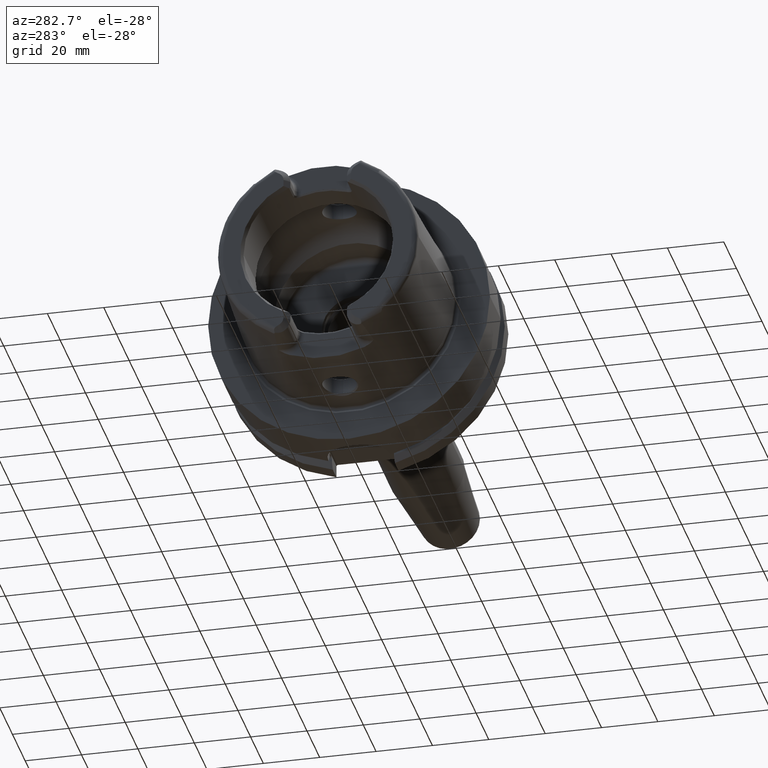
[diagram: clean part render]
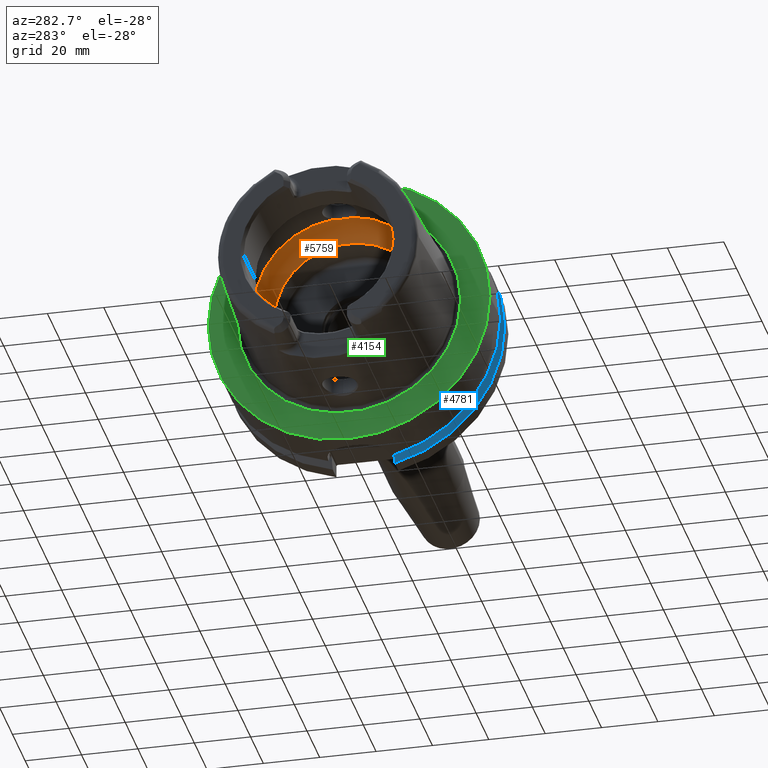
[diagram: same view with three faces highlighted in distinct colors, each labeled with its STEP entity id]
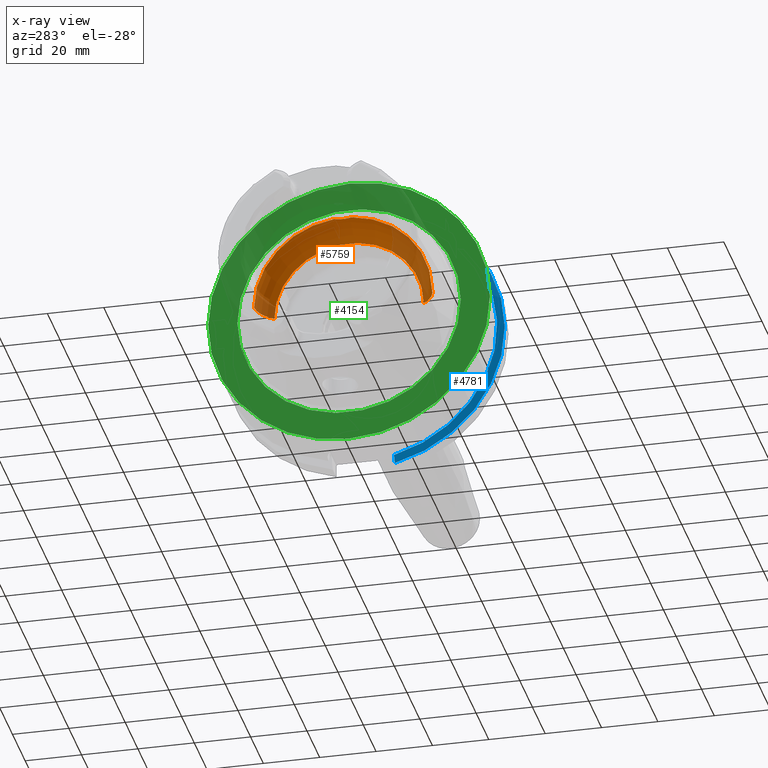
[diagram: x-ray of the same camera — body ghosted, the three highlighted faces saturated]
A machine part, auxiliary view with three faces highlighted in distinct colors.
The next image is the same camera in x-ray (body ghosted, the three faces saturated) — at least one of them is partly hidden behind the body in this view.
Their STEP definitions:

[orange] entity #5759 — the highlighted toroidal blend (fillet) surface has major radius 19.5 mm and minor (blend) radius 12 mm.
#2082=CARTESIAN_POINT('',(-9.E0,0.E0,3.147008518506E1));
#2083=CARTESIAN_POINT('',(-9.E0,2.141252053900E-1,3.147008518506E1));
#2084=CARTESIAN_POINT('',(-9.022897579641E0,6.436731047292E-1,
3.146736073712E1));
#2085=CARTESIAN_POINT('',(-9.127427069178E0,1.286248325661E0,3.145454181001E1));
#2086=CARTESIAN_POINT('',(-9.301031145484E0,1.913730198969E0,3.143197920586E1));
#2087=CARTESIAN_POINT('',(-9.539946842554E0,2.515068696018E0,3.139832080387E1));
#2088=CARTESIAN_POINT('',(-9.738529982809E0,2.891645116602E0,3.136752560017E1));
#2089=CARTESIAN_POINT('',(-9.846794344809E0,3.073185883624E0,3.134972932139E1));
#2091=CARTESIAN_POINT('',(-9.846794344809E0,-3.073185883624E0,
3.134972932139E1));
#2092=CARTESIAN_POINT('',(-9.738534471789E0,-2.891652643851E0,
3.136752486228E1));
#2093=CARTESIAN_POINT('',(-9.539946477828E0,-2.515078628379E0,
3.139832107651E1));
#2094=CARTESIAN_POINT('',(-9.300974895981E0,-1.913573808680E0,
3.143198691417E1));
#2095=CARTESIAN_POINT('',(-9.127396838585E0,-1.286102505522E0,
3.145454553504E1));
#2096=CARTESIAN_POINT('',(-9.022886850943E0,-6.435548392987E-1,
3.146736203025E1));
#2097=CARTESIAN_POINT('',(-9.E0,-2.140793620984E-1,3.147008518506E1));
#2098=CARTESIAN_POINT('',(-9.E0,0.E0,3.147008518506E1));
#2100=CARTESIAN_POINT('',(-1.E-1,0.E0,0.E0));
#2101=DIRECTION('',(1.E0,0.E0,0.E0));
#2102=DIRECTION('',(0.E0,1.E0,0.E0));
#2103=AXIS2_PLACEMENT_3D('',#2100,#2101,#2102);
#2129=CARTESIAN_POINT('',(-9.846794344809E0,0.E0,0.E0));
#2130=DIRECTION('',(1.E0,0.E0,0.E0));
#2131=DIRECTION('',(0.E0,1.E0,0.E0));
#2132=AXIS2_PLACEMENT_3D('',#2129,#2130,#2131);
#2134=CARTESIAN_POINT('',(-9.846794344809E0,0.E0,0.E0));
#2135=DIRECTION('',(1.E0,0.E0,0.E0));
#2136=DIRECTION('',(0.E0,-9.756145662299E-2,9.952295022665E-1));
#2137=AXIS2_PLACEMENT_3D('',#2134,#2135,#2136);
#2238=CARTESIAN_POINT('',(-9.846794344809E0,1.95E1,0.E0));
#2239=DIRECTION('',(0.E0,0.E0,1.E0));
#2240=DIRECTION('',(8.122328620674E-1,5.833333333333E-1,0.E0));
#2241=AXIS2_PLACEMENT_3D('',#2238,#2239,#2240);
#2248=CARTESIAN_POINT('',(-9.846794344809E0,-1.95E1,0.E0));
#2249=DIRECTION('',(0.E0,0.E0,-1.E0));
#2250=DIRECTION('',(8.122328620674E-1,-5.833333333333E-1,0.E0));
#2251=AXIS2_PLACEMENT_3D('',#2248,#2249,#2250);
#2753=CARTESIAN_POINT('',(-1.E-1,2.65E1,0.E0));
#2754=VERTEX_POINT('',#2753);
#2755=CARTESIAN_POINT('',(-9.846794344809E0,3.15E1,0.E0));
#2756=VERTEX_POINT('',#2755);
#2765=CARTESIAN_POINT('',(-1.E-1,-2.65E1,0.E0));
#2766=VERTEX_POINT('',#2765);
#2767=CARTESIAN_POINT('',(-9.846794344809E0,-3.15E1,0.E0));
#2768=VERTEX_POINT('',#2767);
#2934=VERTEX_POINT('',#2082);
#2935=VERTEX_POINT('',#2089);
#2936=VERTEX_POINT('',#2091);
#5740=CARTESIAN_POINT('',(-9.846794344809E0,0.E0,0.E0));
#5741=DIRECTION('',(1.E0,0.E0,0.E0));
#5742=DIRECTION('',(0.E0,-1.E0,0.E0));
#5743=AXIS2_PLACEMENT_3D('',#5740,#5741,#5742);
#5744=TOROIDAL_SURFACE('',#5743,1.95E1,1.2E1);
#5745=ORIENTED_EDGE('',*,*,#5717,.F.);
#5746=ORIENTED_EDGE('',*,*,#5443,.F.);
#5748=ORIENTED_EDGE('',*,*,#5747,.T.);
#5750=ORIENTED_EDGE('',*,*,#5749,.F.);
#5752=ORIENTED_EDGE('',*,*,#5751,.F.);
#5754=ORIENTED_EDGE('',*,*,#5753,.T.);
#5756=ORIENTED_EDGE('',*,*,#5755,.T.);
#5757=EDGE_LOOP('',(#5745,#5746,#5748,#5750,#5752,#5754,#5756));
#5758=FACE_OUTER_BOUND('',#5757,.F.);
#5759=ADVANCED_FACE('',(#5758),#5744,.F.);
#2090=B_SPLINE_CURVE_WITH_KNOTS('',3,(#2082,#2083,#2084,#2085,#2086,#2087,#2088,
#2089),.UNSPECIFIED.,.F.,.F.,(4,1,1,1,1,4),(0.E0,2.E-1,4.E-1,6.E-1,8.E-1,1.E0),
.UNSPECIFIED.);
#2099=B_SPLINE_CURVE_WITH_KNOTS('',3,(#2091,#2092,#2093,#2094,#2095,#2096,#2097,
#2098),.UNSPECIFIED.,.F.,.F.,(4,1,1,1,1,4),(0.E0,2.E-1,4.E-1,6.E-1,8.E-1,1.E0),
.UNSPECIFIED.);
#2104=CIRCLE('',#2103,2.65E1);
#2133=CIRCLE('',#2132,3.15E1);
#2138=CIRCLE('',#2137,3.15E1);
#2242=CIRCLE('',#2241,1.2E1);
#2252=CIRCLE('',#2251,1.2E1);
#5443=EDGE_CURVE('',#2936,#2934,#2099,.T.);
#5717=EDGE_CURVE('',#2934,#2935,#2090,.T.);
#5747=EDGE_CURVE('',#2936,#2768,#2138,.T.);
#5749=EDGE_CURVE('',#2766,#2768,#2252,.T.);
#5751=EDGE_CURVE('',#2754,#2766,#2104,.T.);
#5753=EDGE_CURVE('',#2754,#2756,#2242,.T.);
#5755=EDGE_CURVE('',#2756,#2935,#2133,.T.);

[blue] entity #4781 — the highlighted conical surface has half-angle 60 deg.
#1670=CARTESIAN_POINT('',(2.1875E1,-3.571640491003E1,3.15E1));
#1671=CARTESIAN_POINT('',(2.201925574841E1,-3.604955434192E1,3.15E1));
#1672=CARTESIAN_POINT('',(2.231322476087E1,-3.672437326077E1,3.15E1));
#1673=CARTESIAN_POINT('',(2.277010201186E1,-3.776083400964E1,3.15E1));
#1674=CARTESIAN_POINT('',(2.308650936123E1,-3.847048452534E1,3.15E1));
#1675=CARTESIAN_POINT('',(2.324759526419E1,-3.882975663071E1,3.15E1));
#1677=CARTESIAN_POINT('',(2.324759526419E1,0.E0,0.E0));
#1678=DIRECTION('',(1.E0,0.E0,0.E0));
#1679=DIRECTION('',(0.E0,-7.765951326142E-1,6.3E-1));
#1680=AXIS2_PLACEMENT_3D('',#1677,#1678,#1679);
#1682=CARTESIAN_POINT('',(2.1875E1,-1.1E1,-4.633477721644E1));
#1683=CARTESIAN_POINT('',(2.202318700409E1,-1.1E1,-4.659857839127E1));
#1684=CARTESIAN_POINT('',(2.232244181881E1,-1.1E1,-4.713106867413E1));
#1685=CARTESIAN_POINT('',(2.277988963764E1,-1.1E1,-4.794432689775E1));
#1686=CARTESIAN_POINT('',(2.309072380685E1,-1.1E1,-4.849646015371E1));
#1687=CARTESIAN_POINT('',(2.324759526419E1,-1.1E1,-4.877499359303E1));
#1689=CARTESIAN_POINT('',(2.1875E1,0.E0,0.E0));
#1690=DIRECTION('',(-1.E0,0.E0,0.E0));
#1691=DIRECTION('',(0.E0,-2.309827916554E-1,-9.729578356533E-1));
#1692=AXIS2_PLACEMENT_3D('',#1689,#1690,#1691);
#3026=CARTESIAN_POINT('',(2.324759526419E1,-1.1E1,-4.877499359303E1));
#3028=VERTEX_POINT('',#3026);
#3048=CARTESIAN_POINT('',(2.1875E1,-1.1E1,-4.633477721644E1));
#3049=VERTEX_POINT('',#3048);
#3076=CARTESIAN_POINT('',(2.324759526419E1,-3.882975663071E1,3.15E1));
#3078=VERTEX_POINT('',#3076);
#3100=CARTESIAN_POINT('',(2.1875E1,-3.571640491003E1,3.15E1));
#3101=VERTEX_POINT('',#3100);
#4770=CARTESIAN_POINT('',(2.256129763210E1,0.E0,0.E0));
#4771=DIRECTION('',(1.E0,0.E0,0.E0));
#4772=DIRECTION('',(0.E0,-1.E0,0.E0));
#4773=AXIS2_PLACEMENT_3D('',#4770,#4771,#4772);
#4774=CONICAL_SURFACE('',#4773,4.881129763210E1,6.E1);
#4775=ORIENTED_EDGE('',*,*,#4290,.T.);
#4776=ORIENTED_EDGE('',*,*,#4333,.T.);
#4777=ORIENTED_EDGE('',*,*,#4484,.F.);
#4778=ORIENTED_EDGE('',*,*,#4735,.T.);
#4779=EDGE_LOOP('',(#4775,#4776,#4777,#4778));
#4780=FACE_OUTER_BOUND('',#4779,.F.);
#4781=ADVANCED_FACE('',(#4780),#4774,.T.);
#1676=B_SPLINE_CURVE_WITH_KNOTS('',3,(#1670,#1671,#1672,#1673,#1674,#1675),
.UNSPECIFIED.,.F.,.F.,(4,1,1,4),(0.E0,3.333333333333E-1,6.666666666667E-1,1.E0),
.UNSPECIFIED.);
#1681=CIRCLE('',#1680,5.E1);
#1688=B_SPLINE_CURVE_WITH_KNOTS('',3,(#1682,#1683,#1684,#1685,#1686,#1687),
.UNSPECIFIED.,.F.,.F.,(4,1,1,4),(0.E0,3.333333333333E-1,6.666666666667E-1,1.E0),
.UNSPECIFIED.);
#1693=CIRCLE('',#1692,4.762259526419E1);
#4290=EDGE_CURVE('',#3101,#3078,#1676,.T.);
#4333=EDGE_CURVE('',#3078,#3028,#1681,.T.);
#4484=EDGE_CURVE('',#3049,#3028,#1688,.T.);
#4735=EDGE_CURVE('',#3049,#3101,#1693,.T.);

[green] entity #4154 — the highlighted planar face has unit normal (1, 0, 0).
#905=CARTESIAN_POINT('',(2.842170943040E-14,0.E0,0.E0));
#906=DIRECTION('',(1.E0,0.E0,0.E0));
#907=DIRECTION('',(0.E0,1.E0,0.E0));
#908=AXIS2_PLACEMENT_3D('',#905,#906,#907);
#910=CARTESIAN_POINT('',(2.842170943040E-14,0.E0,0.E0));
#911=DIRECTION('',(-1.E0,0.E0,0.E0));
#912=DIRECTION('',(0.E0,1.E0,0.E0));
#913=AXIS2_PLACEMENT_3D('',#910,#911,#912);
#915=CARTESIAN_POINT('',(0.E0,0.E0,0.E0));
#916=DIRECTION('',(-1.E0,0.E0,0.E0));
#917=DIRECTION('',(0.E0,-1.E0,0.E0));
#918=AXIS2_PLACEMENT_3D('',#915,#916,#917);
#920=CARTESIAN_POINT('',(0.E0,0.E0,0.E0));
#921=DIRECTION('',(-1.E0,0.E0,0.E0));
#922=DIRECTION('',(0.E0,1.E0,0.E0));
#923=AXIS2_PLACEMENT_3D('',#920,#921,#922);
#2713=CARTESIAN_POINT('',(2.842170943040E-14,5.E1,0.E0));
#2714=CARTESIAN_POINT('',(2.842170943040E-14,-5.E1,0.E0));
#2715=VERTEX_POINT('',#2713);
#2716=VERTEX_POINT('',#2714);
#2741=CARTESIAN_POINT('',(0.E0,-3.963225E1,0.E0));
#2742=VERTEX_POINT('',#2741);
#2743=CARTESIAN_POINT('',(0.E0,3.963225E1,0.E0));
#2744=VERTEX_POINT('',#2743);
#4139=CARTESIAN_POINT('',(0.E0,0.E0,0.E0));
#4140=DIRECTION('',(1.E0,0.E0,0.E0));
#4141=DIRECTION('',(0.E0,-1.E0,0.E0));
#4142=AXIS2_PLACEMENT_3D('',#4139,#4140,#4141);
#4143=PLANE('',#4142);
#4145=ORIENTED_EDGE('',*,*,#4144,.T.);
#4147=ORIENTED_EDGE('',*,*,#4146,.F.);
#4148=EDGE_LOOP('',(#4145,#4147));
#4149=FACE_OUTER_BOUND('',#4148,.F.);
#4150=ORIENTED_EDGE('',*,*,#4134,.T.);
#4151=ORIENTED_EDGE('',*,*,#4118,.T.);
#4152=EDGE_LOOP('',(#4150,#4151));
#4153=FACE_BOUND('',#4152,.F.);
#4154=ADVANCED_FACE('',(#4149,#4153),#4143,.F.);
#909=CIRCLE('',#908,5.E1);
#914=CIRCLE('',#913,5.E1);
#919=CIRCLE('',#918,3.963225E1);
#924=CIRCLE('',#923,3.963225E1);
#4118=EDGE_CURVE('',#2744,#2742,#924,.T.);
#4134=EDGE_CURVE('',#2742,#2744,#919,.T.);
#4144=EDGE_CURVE('',#2715,#2716,#909,.T.);
#4146=EDGE_CURVE('',#2715,#2716,#914,.T.);